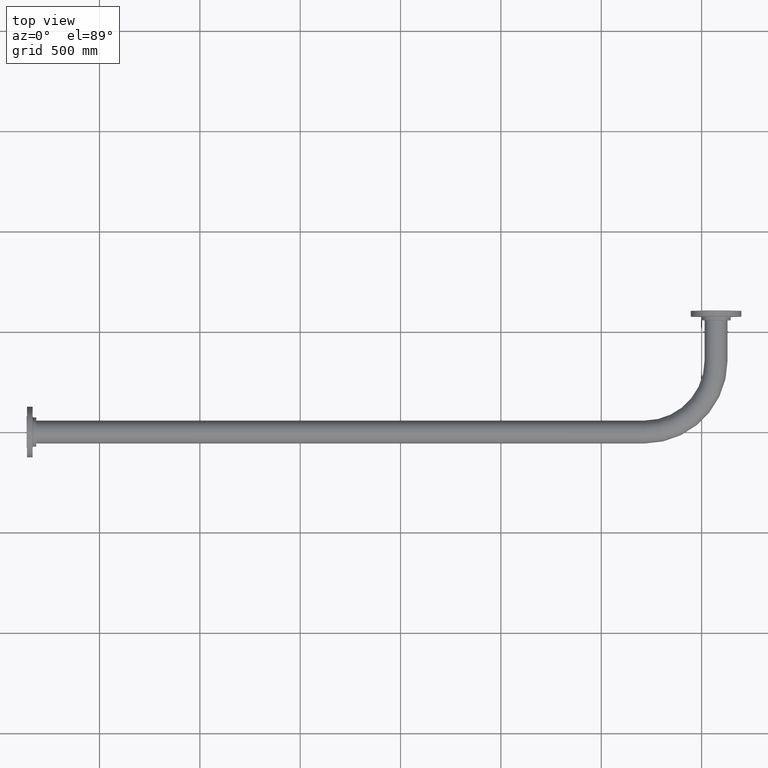
[diagram: clean part render]
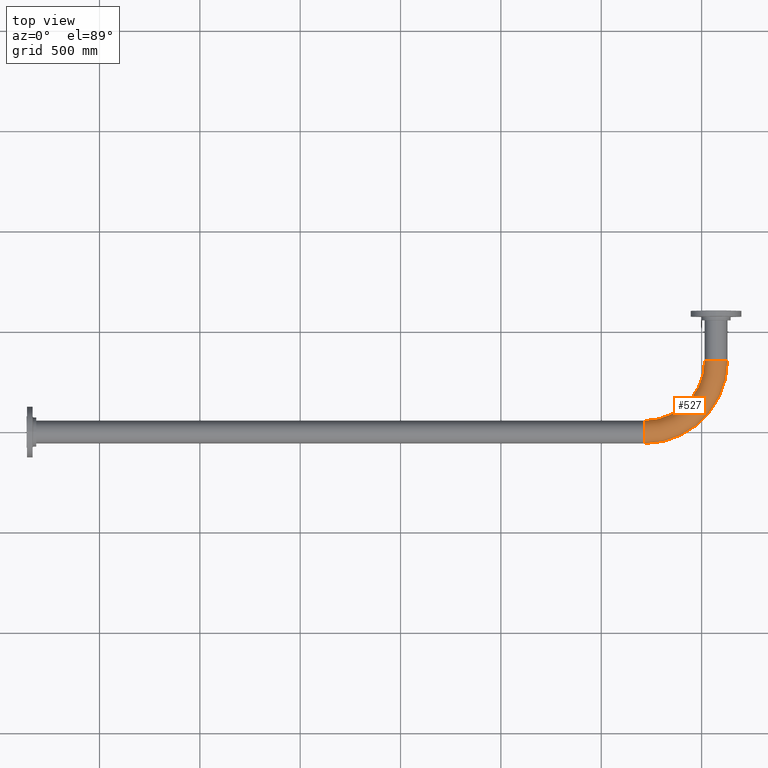
[diagram: same view with one face highlighted and labeled with its STEP entity id]
A machine part, top view. The second image highlights one B-rep face of the part: STEP entity #527.
In plain terms, the highlighted toroidal blend (fillet) surface has major radius 356 mm and minor (blend) radius 57.15 mm.
Its self-contained STEP definition (entity closure, byte-faithful):
#47 = CARTESIAN_POINT ( 'NONE',  ( -5071.999999999999091, -356.0000000000015348, 57.15000000000000568 ) ) ;
#103 = EDGE_CURVE ( 'NONE', #735, #1179, #1362, .T. ) ;
#160 = VERTEX_POINT ( 'NONE', #268 ) ;
#265 = ORIENTED_EDGE ( 'NONE', *, *, #612, .F. ) ;
#268 = CARTESIAN_POINT ( 'NONE',  ( -4716.000000000000000, -57.15000000000000568, 6.998856457126395222E-15 ) ) ;
#387 = DIRECTION ( 'NONE',  ( -1.000000000000000000, 6.712647246080441804E-19, -2.958228394578794270E-31 ) ) ;
#393 = ORIENTED_EDGE ( 'NONE', *, *, #929, .F. ) ;
#406 = CARTESIAN_POINT ( 'NONE',  ( -5072.000000000000909, -356.0000000000015348, -1.183291357831517708E-27 ) ) ;
#470 = DIRECTION ( 'NONE',  ( 2.650142136768042114E-15, -1.000000000000000000, -2.366582715663035416E-30 ) ) ;
#520 = AXIS2_PLACEMENT_3D ( 'NONE', #1452, #1593, #1330 ) ;
#527 = ADVANCED_FACE ( 'NONE', ( #734 ), #800, .T. ) ;
#546 = CIRCLE ( 'NONE', #1182, 298.8500000000007049 ) ;
#574 = CIRCLE ( 'NONE', #1569, 57.15000000000000568 ) ;
#594 = AXIS2_PLACEMENT_3D ( 'NONE', #406, #1005, #1101 ) ;
#603 = ORIENTED_EDGE ( 'NONE', *, *, #875, .T. ) ;
#612 = EDGE_CURVE ( 'NONE', #1179, #1434, #866, .T. ) ;
#617 = ORIENTED_EDGE ( 'NONE', *, *, #983, .T. ) ;
#622 = CARTESIAN_POINT ( 'NONE',  ( -5072.000000000000909, -356.0000000000015348, -1.183291357831517708E-27 ) ) ;
#657 = CARTESIAN_POINT ( 'NONE',  ( -4716.000000000000000, -356.0000000000005684, 6.998856457125940839E-15 ) ) ;
#686 = AXIS2_PLACEMENT_3D ( 'NONE', #622, #470, #1003 ) ;
#692 = EDGE_LOOP ( 'NONE', ( #393, #265, #761, #617, #603 ) ) ;
#731 = CARTESIAN_POINT ( 'NONE',  ( -5014.850000000001273, -356.0000000000013642, 6.998856457125894296E-15 ) ) ;
#734 = FACE_OUTER_BOUND ( 'NONE', #692, .T. ) ;
#735 = VERTEX_POINT ( 'NONE', #731 ) ;
#761 = ORIENTED_EDGE ( 'NONE', *, *, #103, .F. ) ;
#778 = DIRECTION ( 'NONE',  ( 0.000000000000000000, -1.000000000000000000, 0.000000000000000000 ) ) ;
#800 = TOROIDAL_SURFACE ( 'NONE', #830, 356.0000000000007390, 57.15000000000000568 ) ;
#830 = AXIS2_PLACEMENT_3D ( 'NONE', #1166, #1560, #1023 ) ;
#866 = CIRCLE ( 'NONE', #686, 57.15000000000003411 ) ;
#875 = EDGE_CURVE ( 'NONE', #160, #1548, #574, .T. ) ;
#929 = EDGE_CURVE ( 'NONE', #1434, #1548, #1238, .T. ) ;
#983 = EDGE_CURVE ( 'NONE', #735, #160, #546, .T. ) ;
#1003 = DIRECTION ( 'NONE',  ( 1.000000000000000000, 2.913971193241878794E-15, 2.958228394578794270E-31 ) ) ;
#1005 = DIRECTION ( 'NONE',  ( 2.650142136768042114E-15, -1.000000000000000000, -2.366582715663035416E-30 ) ) ;
#1023 = DIRECTION ( 'NONE',  ( -1.000000000000000000, 0.000000000000000000, 2.958228394578794270E-31 ) ) ;
#1101 = DIRECTION ( 'NONE',  ( 1.000000000000000000, 2.913971193241878794E-15, 2.958228394578794270E-31 ) ) ;
#1166 = CARTESIAN_POINT ( 'NONE',  ( -4716.000000000000000, -356.0000000000005684, -1.183291357831517708E-27 ) ) ;
#1179 = VERTEX_POINT ( 'NONE', #47 ) ;
#1182 = AXIS2_PLACEMENT_3D ( 'NONE', #657, #1620, #1207 ) ;
#1207 = DIRECTION ( 'NONE',  ( -1.000000000000000000, 0.000000000000000000, 2.938678449525104600E-31 ) ) ;
#1238 = CIRCLE ( 'NONE', #520, 413.1500000000007731 ) ;
#1316 = CARTESIAN_POINT ( 'NONE',  ( -4716.000000000000000, 57.15000000000000568, -7.286116535847569391E-28 ) ) ;
#1330 = DIRECTION ( 'NONE',  ( -1.000000000000000000, 0.000000000000000000, 2.958228394578792081E-31 ) ) ;
#1362 = CIRCLE ( 'NONE', #594, 57.15000000000003411 ) ;
#1434 = VERTEX_POINT ( 'NONE', #1515 ) ;
#1452 = CARTESIAN_POINT ( 'NONE',  ( -4716.000000000000000, -356.0000000000005684, -1.183291357831517708E-27 ) ) ;
#1471 = CARTESIAN_POINT ( 'NONE',  ( -4716.000000000000000, 3.165684441250926505E-15, -1.183291357831517708E-27 ) ) ;
#1515 = CARTESIAN_POINT ( 'NONE',  ( -5129.150000000000546, -356.0000000000017053, -1.061072151709494751E-27 ) ) ;
#1548 = VERTEX_POINT ( 'NONE', #1316 ) ;
#1560 = DIRECTION ( 'NONE',  ( -2.958228394578794270E-31, 0.000000000000000000, -1.000000000000000000 ) ) ;
#1569 = AXIS2_PLACEMENT_3D ( 'NONE', #1471, #387, #778 ) ;
#1593 = DIRECTION ( 'NONE',  ( -2.958228394578794270E-31, 0.000000000000000000, -1.000000000000000000 ) ) ;
#1620 = DIRECTION ( 'NONE',  ( -2.958228394578794270E-31, 0.000000000000000000, -1.000000000000000000 ) ) ;